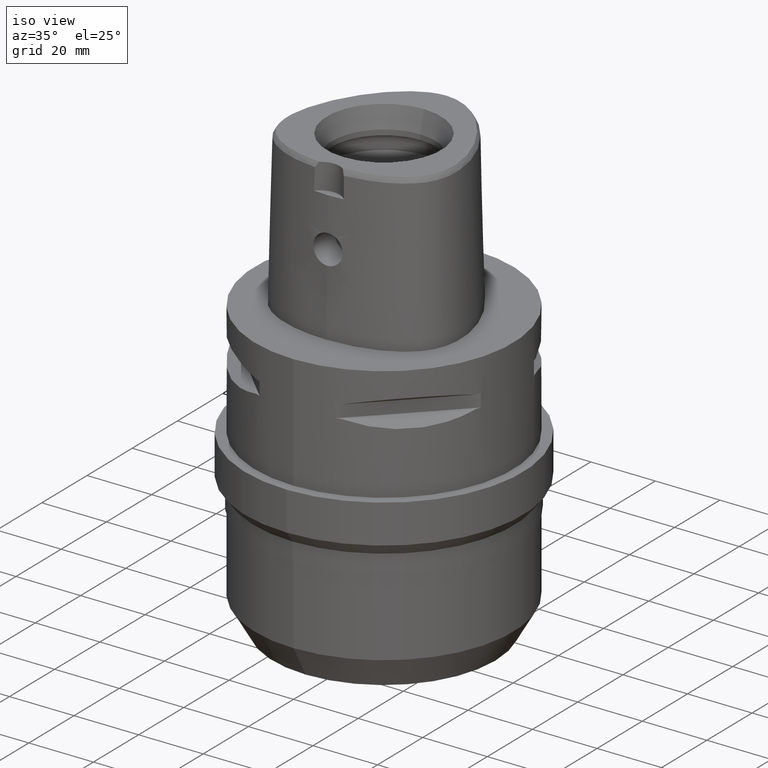
[diagram: clean part render]
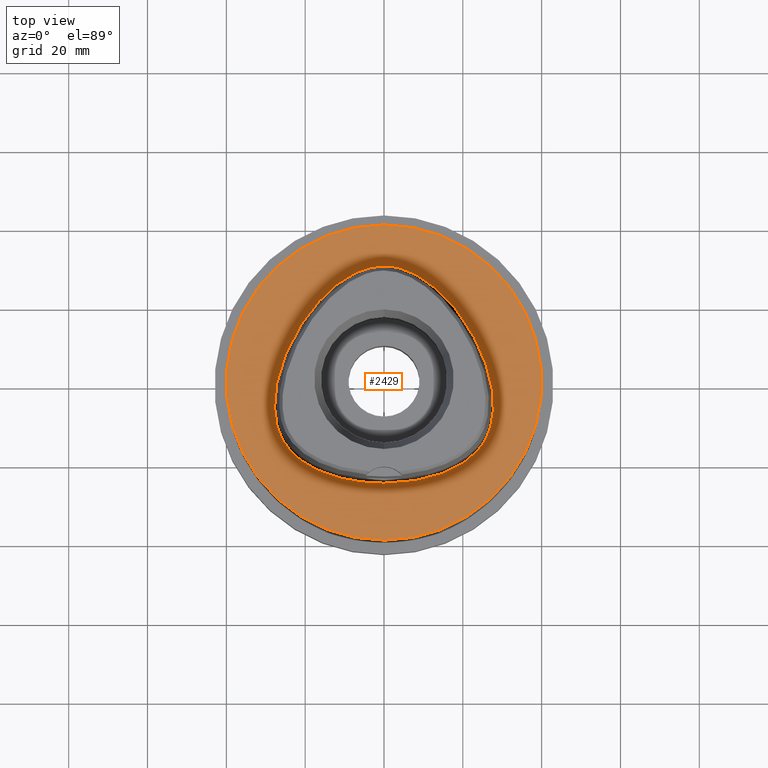
[diagram: tour spotlight — one face highlighted and labeled with its STEP entity id]
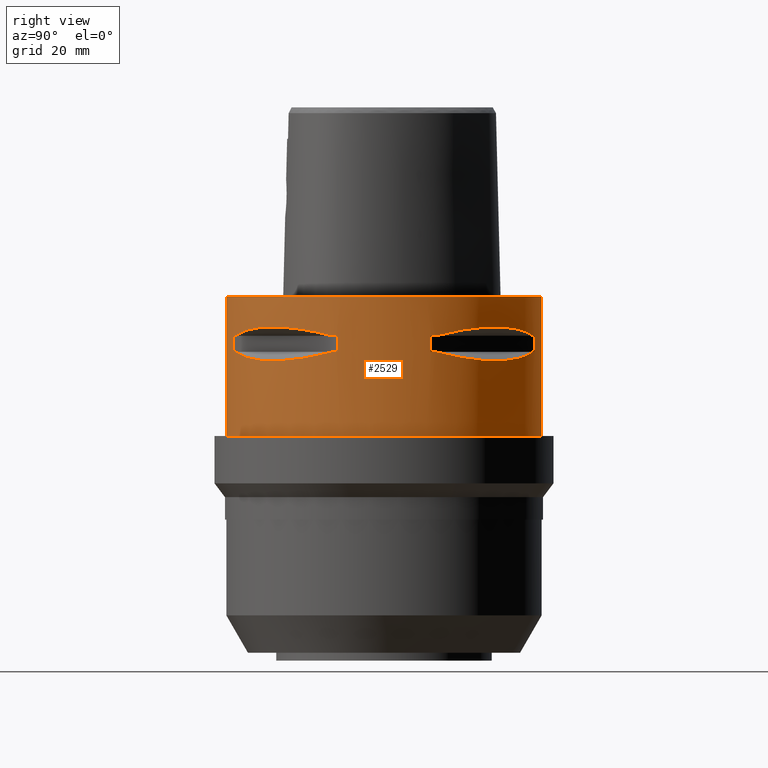
[diagram: tour spotlight — one face highlighted and labeled with its STEP entity id]
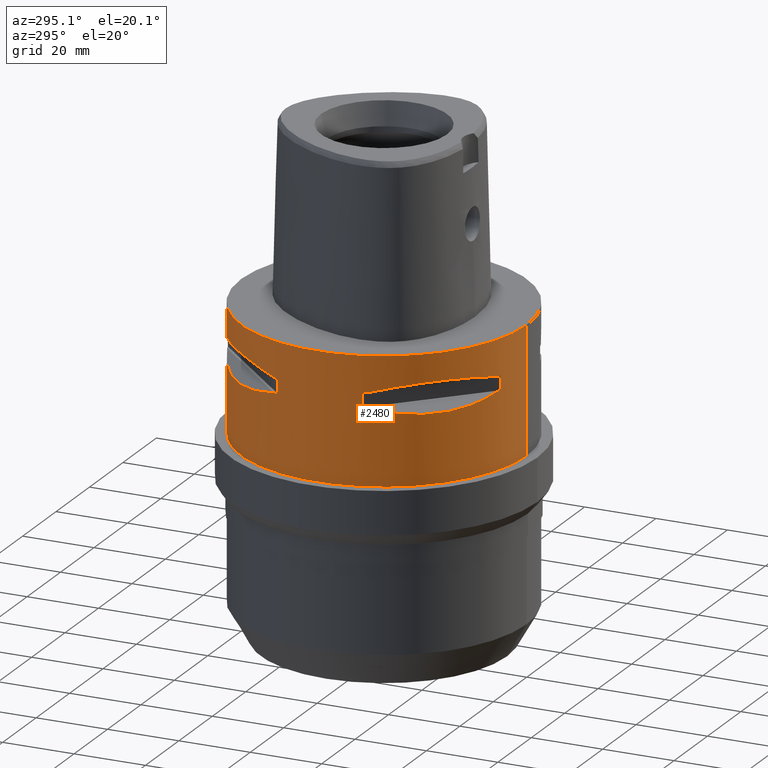
[diagram: tour spotlight — one face highlighted and labeled with its STEP entity id]
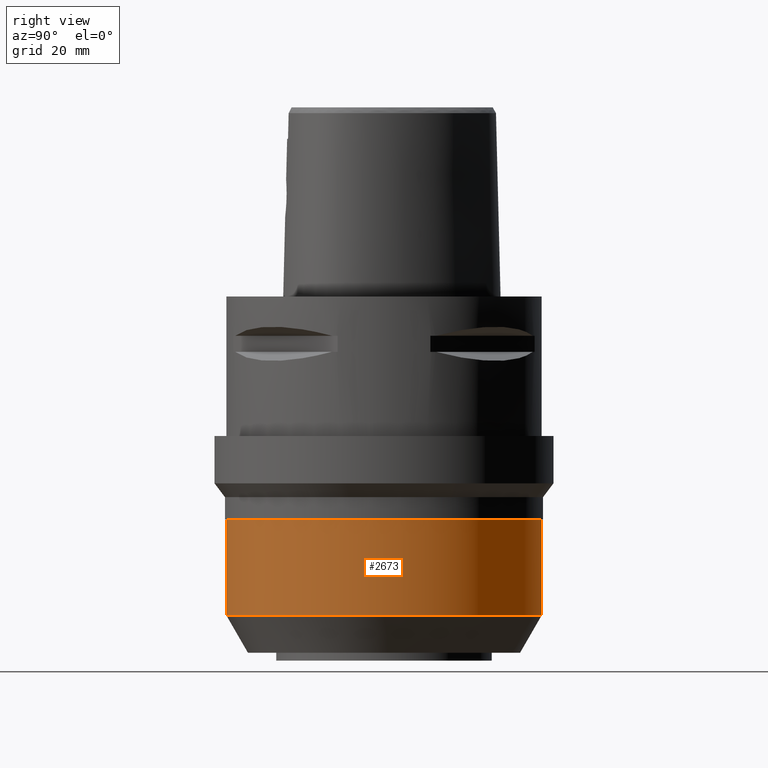
[diagram: tour spotlight — one face highlighted and labeled with its STEP entity id]
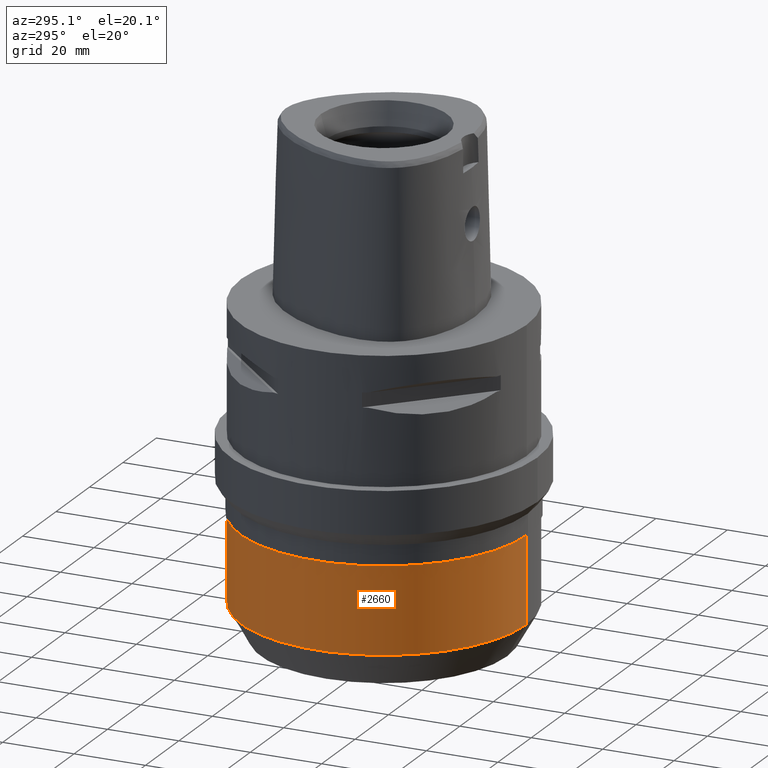
[diagram: tour spotlight — one face highlighted and labeled with its STEP entity id]
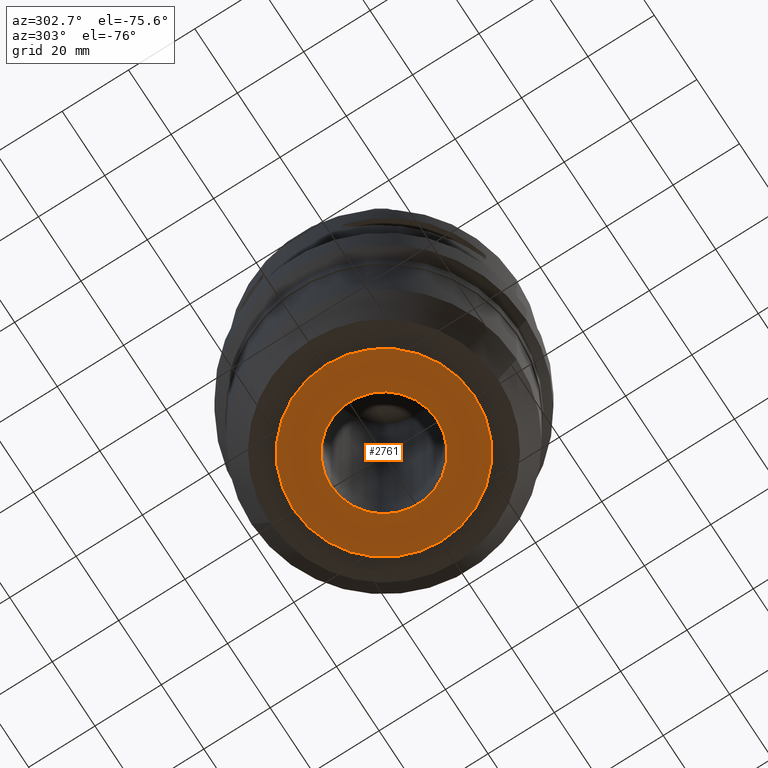
[diagram: tour spotlight — one face highlighted and labeled with its STEP entity id]
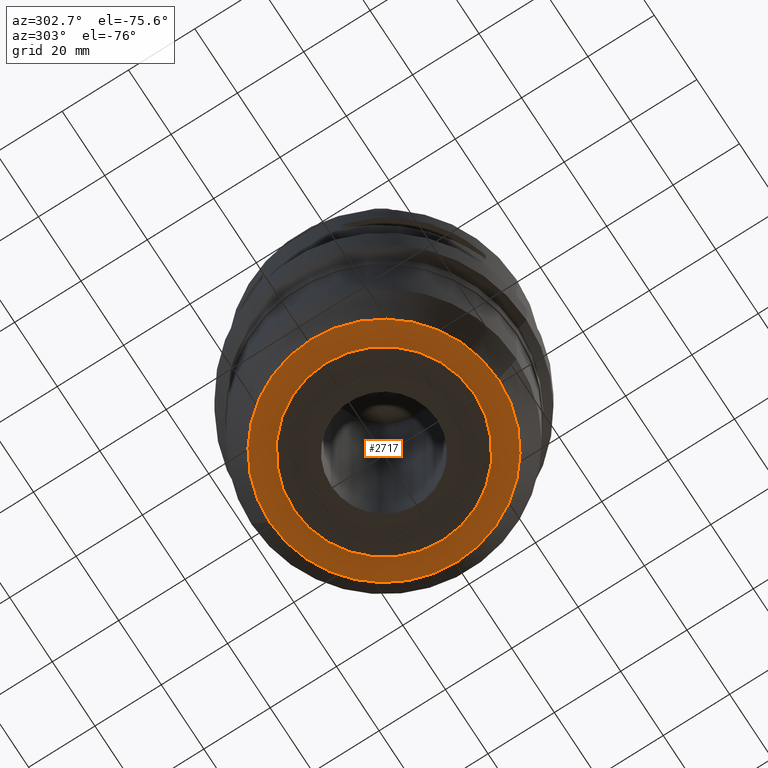
[diagram: tour spotlight — one face highlighted and labeled with its STEP entity id]
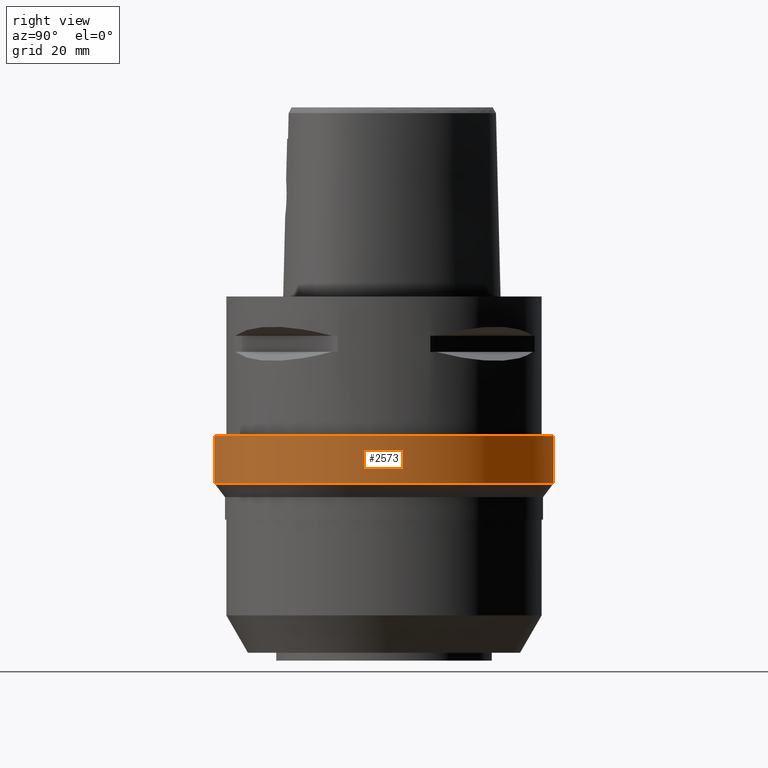
[diagram: tour spotlight — one face highlighted and labeled with its STEP entity id]
A machine part: a face-by-face anatomy tour. The part has 69 B-rep faces; the first image is the clean iso view, then the 8 largest visible faces are spotlighted one at a time (largest first), each with its STEP entity span.

Face 1 — top view, entity #2429. In plain terms, the highlighted planar face has unit normal (0, 0, -1).
Definition (entity closure, byte-faithful):
#292=CARTESIAN_POINT('',(0.E0,0.E0,0.E0));
#293=DIRECTION('',(0.E0,0.E0,-1.E0));
#294=DIRECTION('',(0.E0,-1.E0,0.E0));
#295=AXIS2_PLACEMENT_3D('',#292,#293,#294);
#300=CARTESIAN_POINT('',(0.E0,0.E0,0.E0));
#301=DIRECTION('',(0.E0,0.E0,-1.E0));
#302=DIRECTION('',(0.E0,1.E0,0.E0));
#303=AXIS2_PLACEMENT_3D('',#300,#301,#302);
#308=CARTESIAN_POINT('',(-1.704819286307E-11,-2.5575E1,1.118364660139E-13));
#309=CARTESIAN_POINT('',(1.192855654687E0,-2.5575E1,1.118364660139E-13));
#310=CARTESIAN_POINT('',(3.525474009142E0,-2.548902365288E1,
-5.190348450835E-14));
#311=CARTESIAN_POINT('',(6.913191500119E0,-2.511614812679E1,
1.390749675837E-14));
#312=CARTESIAN_POINT('',(1.004555650592E1,-2.453146325509E1,0.E0));
#313=CARTESIAN_POINT('',(1.287480431389E1,-2.377673871202E1,0.E0));
#314=CARTESIAN_POINT('',(1.537685864343E1,-2.289357187451E1,0.E0));
#315=CARTESIAN_POINT('',(1.755784012921E1,-2.191831839298E1,0.E0));
#316=CARTESIAN_POINT('',(1.943977073912E1,-2.087916476292E1,0.E0));
#317=CARTESIAN_POINT('',(2.105231534689E1,-1.979609368880E1,0.E0));
#318=CARTESIAN_POINT('',(2.242617933573E1,-1.868231820935E1,0.E0));
#319=CARTESIAN_POINT('',(2.359218890728E1,-1.754336768509E1,0.E0));
#320=CARTESIAN_POINT('',(2.457422268564E1,-1.638207117775E1,0.E0));
#321=CARTESIAN_POINT('',(2.539083324940E1,-1.520281756939E1,0.E0));
#322=CARTESIAN_POINT('',(2.607594664674E1,-1.396989071493E1,0.E0));
#323=CARTESIAN_POINT('',(2.665774432240E1,-1.262889422025E1,0.E0));
#324=CARTESIAN_POINT('',(2.713657693131E1,-1.115034439777E1,0.E0));
#325=CARTESIAN_POINT('',(2.749973550563E1,-9.518521507E0,0.E0));
#326=CARTESIAN_POINT('',(2.773143210919E1,-7.709925722843E0,0.E0));
#327=CARTESIAN_POINT('',(2.780878539476E1,-5.702858580120E0,0.E0));
#328=CARTESIAN_POINT('',(2.770312756552E1,-3.478249491200E0,0.E0));
#329=CARTESIAN_POINT('',(2.738074183948E1,-1.022878890598E0,0.E0));
#330=CARTESIAN_POINT('',(2.680591021336E1,1.662565602731E0,0.E0));
#331=CARTESIAN_POINT('',(2.594630766962E1,4.557115348051E0,0.E0));
#332=CARTESIAN_POINT('',(2.478176121823E1,7.610490465510E0,0.E0));
#333=CARTESIAN_POINT('',(2.331365745279E1,1.074148685814E1,0.E0));
#334=CARTESIAN_POINT('',(2.157347165724E1,1.384011179641E1,0.E0));
#335=CARTESIAN_POINT('',(1.964060043903E1,1.675996304863E1,0.E0));
#336=CARTESIAN_POINT('',(1.759822796826E1,1.939974571574E1,0.E0));
#337=CARTESIAN_POINT('',(1.551951354564E1,2.170589686970E1,0.E0));
#338=CARTESIAN_POINT('',(1.346458118819E1,2.365966150815E1,0.E0));
#339=CARTESIAN_POINT('',(1.147339877138E1,2.527228069645E1,0.E0));
#340=CARTESIAN_POINT('',(9.569291645170E0,2.657104012927E1,0.E0));
#341=CARTESIAN_POINT('',(7.761236493572E0,2.759097337069E1,0.E0));
#342=CARTESIAN_POINT('',(6.048963475842E0,2.836733969280E1,0.E0));
#343=CARTESIAN_POINT('',(4.426464392993E0,2.893213407126E1,0.E0));
#344=CARTESIAN_POINT('',(2.883294620587E0,2.931235794594E1,1.312054045603E-14));
#345=CARTESIAN_POINT('',(1.410670896354E0,2.952903181481E1,
-4.896652360467E-14));
#346=CARTESIAN_POINT('',(4.637439554641E-1,2.957499999999E1,
1.055081947735E-13));
#347=CARTESIAN_POINT('',(4.094835185930E-11,2.957499999999E1,
1.055081947735E-13));
#352=CARTESIAN_POINT('',(4.094835185930E-11,2.957499999999E1,
1.055081947735E-13));
#353=CARTESIAN_POINT('',(-4.664564684384E-1,2.957499999999E1,
1.055081947735E-13));
#354=CARTESIAN_POINT('',(-1.418271028566E0,2.952848507996E1,
-4.896652360467E-14));
#355=CARTESIAN_POINT('',(-2.896217051050E0,2.930995325337E1,
1.312054045603E-14));
#356=CARTESIAN_POINT('',(-4.443884931567E0,2.892708811583E1,0.E0));
#357=CARTESIAN_POINT('',(-6.069813882001E0,2.835898482873E1,0.E0));
#358=CARTESIAN_POINT('',(-7.780373194796E0,2.758111955665E1,0.E0));
#359=CARTESIAN_POINT('',(-9.585481608237E0,2.656078305260E1,0.E0));
#360=CARTESIAN_POINT('',(-1.148361208187E1,2.526433347887E1,0.E0));
#361=CARTESIAN_POINT('',(-1.346633178516E1,2.365774650746E1,0.E0));
#362=CARTESIAN_POINT('',(-1.551326053238E1,2.171184069412E1,0.E0));
#363=CARTESIAN_POINT('',(-1.758199557510E1,1.941857400264E1,0.E0));
#364=CARTESIAN_POINT('',(-1.961693493878E1,1.679246973417E1,0.E0));
#365=CARTESIAN_POINT('',(-2.154357946018E1,1.388796551507E1,0.E0));
#366=CARTESIAN_POINT('',(-2.327631850598E1,1.081304331557E1,0.E0));
#367=CARTESIAN_POINT('',(-2.474800267217E1,7.689226874884E0,0.E0));
#368=CARTESIAN_POINT('',(-2.591507505114E1,4.647666988424E0,0.E0));
#369=CARTESIAN_POINT('',(-2.678019667027E1,1.761498275329E0,0.E0));
#370=CARTESIAN_POINT('',(-2.736252648146E1,-9.199920726734E-1,0.E0));
#371=CARTESIAN_POINT('',(-2.769345335620E1,-3.374240948671E0,0.E0));
#372=CARTESIAN_POINT('',(-2.780796994262E1,-5.603010637275E0,0.E0));
#373=CARTESIAN_POINT('',(-2.773915802349E1,-7.615039053868E0,0.E0));
#374=CARTESIAN_POINT('',(-2.751385896507E1,-9.436890439889E0,0.E0));
#375=CARTESIAN_POINT('',(-2.715772832384E1,-1.107142889865E1,0.E0));
#376=CARTESIAN_POINT('',(-2.668453526956E1,-1.255805913812E1,0.E0));
#377=CARTESIAN_POINT('',(-2.610182852062E1,-1.391937325701E1,0.E0));
#378=CARTESIAN_POINT('',(-2.539957500954E1,-1.519188202084E1,0.E0));
#379=CARTESIAN_POINT('',(-2.455886506967E1,-1.640320524147E1,0.E0));
#380=CARTESIAN_POINT('',(-2.356927570199E1,-1.756804304800E1,0.E0));
#381=CARTESIAN_POINT('',(-2.239536366538E1,-1.870975851906E1,0.E0));
#382=CARTESIAN_POINT('',(-2.101862773116E1,-1.982083592174E1,0.E0));
#383=CARTESIAN_POINT('',(-1.940143759145E1,-2.090242833450E1,0.E0));
#384=CARTESIAN_POINT('',(-1.751815854250E1,-2.193790857256E1,0.E0));
#385=CARTESIAN_POINT('',(-1.533575286605E1,-2.290979051184E1,0.E0));
#386=CARTESIAN_POINT('',(-1.283637987130E1,-2.378832450704E1,0.E0));
#387=CARTESIAN_POINT('',(-1.001156390994E1,-2.453906053571E1,0.E0));
#388=CARTESIAN_POINT('',(-6.881039442222E0,-2.512047618744E1,
1.390749675837E-14));
#389=CARTESIAN_POINT('',(-3.517978097918E0,-2.548906313244E1,
-5.190348450835E-14));
#390=CARTESIAN_POINT('',(-1.190740944839E0,-2.5575E1,1.118364660139E-13));
#391=CARTESIAN_POINT('',(-1.704819286307E-11,-2.5575E1,1.118364660139E-13));
#1526=VERTEX_POINT('',#352);
#1527=VERTEX_POINT('',#391);
#1532=CARTESIAN_POINT('',(0.E0,-4.E1,0.E0));
#1533=CARTESIAN_POINT('',(0.E0,4.E1,0.E0));
#1534=VERTEX_POINT('',#1532);
#1535=VERTEX_POINT('',#1533);
#2413=CARTESIAN_POINT('',(0.E0,0.E0,0.E0));
#2414=DIRECTION('',(0.E0,0.E0,-1.E0));
#2415=DIRECTION('',(0.E0,-1.E0,0.E0));
#2416=AXIS2_PLACEMENT_3D('',#2413,#2414,#2415);
#2417=PLANE('',#2416);
#2419=ORIENTED_EDGE('',*,*,#2418,.T.);
#2421=ORIENTED_EDGE('',*,*,#2420,.T.);
#2422=EDGE_LOOP('',(#2419,#2421));
#2423=FACE_OUTER_BOUND('',#2422,.F.);
#2425=ORIENTED_EDGE('',*,*,#2424,.T.);
#2426=ORIENTED_EDGE('',*,*,#2396,.T.);
#2427=EDGE_LOOP('',(#2425,#2426));
#2428=FACE_BOUND('',#2427,.F.);
#296=CIRCLE('',#295,4.E1);
#304=CIRCLE('',#303,4.E1);
#348=B_SPLINE_CURVE_WITH_KNOTS('',3,(#308,#309,#310,#311,#312,#313,#314,#315,
#316,#317,#318,#319,#320,#321,#322,#323,#324,#325,#326,#327,#328,#329,#330,#331,
#332,#333,#334,#335,#336,#337,#338,#339,#340,#341,#342,#343,#344,#345,#346,
#347),.UNSPECIFIED.,.F.,.F.,(4,1,1,1,1,1,1,1,1,1,1,1,1,1,1,1,1,1,1,1,1,1,1,1,1,
1,1,1,1,1,1,1,1,1,1,1,1,4),(0.E0,2.702702702703E-2,5.405405405405E-2,
8.108108108108E-2,1.081081081081E-1,1.351351351351E-1,1.621621621622E-1,
1.891891891892E-1,2.162162162162E-1,2.432432432432E-1,2.702702702703E-1,
2.972972972973E-1,3.243243243243E-1,3.513513513514E-1,3.783783783784E-1,
4.054054054054E-1,4.324324324324E-1,4.594594594595E-1,4.864864864865E-1,
5.135135135135E-1,5.405405405405E-1,5.675675675676E-1,5.945945945946E-1,
6.216216216216E-1,6.486486486486E-1,6.756756756757E-1,7.027027027027E-1,
7.297297297297E-1,7.567567567568E-1,7.837837837838E-1,8.108108108108E-1,
8.378378378378E-1,8.648648648649E-1,8.918918918919E-1,9.189189189189E-1,
9.459459459459E-1,9.729729729730E-1,1.E0),.UNSPECIFIED.);
#392=B_SPLINE_CURVE_WITH_KNOTS('',3,(#352,#353,#354,#355,#356,#357,#358,#359,
#360,#361,#362,#363,#364,#365,#366,#367,#368,#369,#370,#371,#372,#373,#374,#375,
#376,#377,#378,#379,#380,#381,#382,#383,#384,#385,#386,#387,#388,#389,#390,
#391),.UNSPECIFIED.,.F.,.F.,(4,1,1,1,1,1,1,1,1,1,1,1,1,1,1,1,1,1,1,1,1,1,1,1,1,
1,1,1,1,1,1,1,1,1,1,1,1,4),(0.E0,2.702702702703E-2,5.405405405405E-2,
8.108108108108E-2,1.081081081081E-1,1.351351351351E-1,1.621621621622E-1,
1.891891891892E-1,2.162162162162E-1,2.432432432432E-1,2.702702702703E-1,
2.972972972973E-1,3.243243243243E-1,3.513513513514E-1,3.783783783784E-1,
4.054054054054E-1,4.324324324324E-1,4.594594594595E-1,4.864864864865E-1,
5.135135135135E-1,5.405405405405E-1,5.675675675676E-1,5.945945945946E-1,
6.216216216216E-1,6.486486486486E-1,6.756756756757E-1,7.027027027027E-1,
7.297297297297E-1,7.567567567568E-1,7.837837837838E-1,8.108108108108E-1,
8.378378378378E-1,8.648648648649E-1,8.918918918919E-1,9.189189189189E-1,
9.459459459459E-1,9.729729729730E-1,1.E0),.UNSPECIFIED.);
#2396=EDGE_CURVE('',#1526,#1527,#392,.T.);
#2418=EDGE_CURVE('',#1534,#1535,#296,.T.);
#2420=EDGE_CURVE('',#1535,#1534,#304,.T.);
#2424=EDGE_CURVE('',#1527,#1526,#348,.T.);
#2429=ADVANCED_FACE('',(#2423,#2428),#2417,.F.);

Face 2 — right view, entity #2529. In plain terms, the highlighted cylindrical surface (partial cylindrical patch) has radius 40 mm, axis along (0, 0, -1).
Definition (entity closure, byte-faithful):
#300=CARTESIAN_POINT('',(0.E0,0.E0,0.E0));
#301=DIRECTION('',(0.E0,0.E0,-1.E0));
#302=DIRECTION('',(0.E0,1.E0,0.E0));
#303=AXIS2_PLACEMENT_3D('',#300,#301,#302);
#396=DIRECTION('',(0.E0,0.E0,-1.E0));
#397=VECTOR('',#396,3.54E1);
#398=CARTESIAN_POINT('',(0.E0,-4.E1,0.E0));
#399=LINE('',#398,#397);
#453=DIRECTION('',(0.E0,0.E0,-1.E0));
#454=VECTOR('',#453,3.54E1);
#455=CARTESIAN_POINT('',(0.E0,4.E1,0.E0));
#456=LINE('',#455,#454);
#460=DIRECTION('',(0.E0,0.E0,-1.E0));
#461=VECTOR('',#460,4.1E0);
#462=CARTESIAN_POINT('',(1.176033600281E1,-3.823211342708E1,-9.95E0));
#463=LINE('',#462,#461);
#467=CARTESIAN_POINT('',(1.323717311056E1,-3.774622163927E1,-1.405E1));
#468=CARTESIAN_POINT('',(1.626143876435E1,-3.668564587161E1,-1.485167303901E1));
#469=CARTESIAN_POINT('',(2.171906657626E1,-3.397359084062E1,-1.597254843317E1));
#470=CARTESIAN_POINT('',(2.850324251697E1,-2.850324251697E1,-1.650891631180E1));
#471=CARTESIAN_POINT('',(3.397359084062E1,-2.171906657626E1,-1.597254843317E1));
#472=CARTESIAN_POINT('',(3.668564587161E1,-1.626143876435E1,-1.485167303901E1));
#473=CARTESIAN_POINT('',(3.774622163927E1,-1.323717311056E1,-1.405E1));
#478=DIRECTION('',(0.E0,0.E0,1.E0));
#479=VECTOR('',#478,4.1E0);
#480=CARTESIAN_POINT('',(3.823211342708E1,-1.176033600281E1,-1.405E1));
#481=LINE('',#480,#479);
#485=DIRECTION('',(0.E0,0.E0,-1.E0));
#486=VECTOR('',#485,4.1E0);
#487=CARTESIAN_POINT('',(3.823211342708E1,1.176033600281E1,-9.95E0));
#488=LINE('',#487,#486);
#492=CARTESIAN_POINT('',(3.774622163927E1,1.323717311056E1,-1.405E1));
#493=CARTESIAN_POINT('',(3.668564587161E1,1.626143876435E1,-1.485167303901E1));
#494=CARTESIAN_POINT('',(3.397359084062E1,2.171906657626E1,-1.597254843317E1));
#495=CARTESIAN_POINT('',(2.850324251697E1,2.850324251697E1,-1.650891631180E1));
#496=CARTESIAN_POINT('',(2.171906657626E1,3.397359084062E1,-1.597254843317E1));
#497=CARTESIAN_POINT('',(1.626143876435E1,3.668564587161E1,-1.485167303901E1));
#498=CARTESIAN_POINT('',(1.323717311056E1,3.774622163927E1,-1.405E1));
#503=DIRECTION('',(0.E0,0.E0,1.E0));
#504=VECTOR('',#503,4.1E0);
#505=CARTESIAN_POINT('',(1.176033600281E1,3.823211342708E1,-1.405E1));
#506=LINE('',#505,#504);
#526=CARTESIAN_POINT('',(0.E0,0.E0,-3.54E1));
#527=DIRECTION('',(0.E0,0.E0,1.E0));
#528=DIRECTION('',(0.E0,-1.E0,0.E0));
#529=AXIS2_PLACEMENT_3D('',#526,#527,#528);
#1226=CARTESIAN_POINT('',(1.323717311056E1,-3.774622163927E1,
-9.950000000002E0));
#1227=CARTESIAN_POINT('',(1.626143876435E1,-3.668564587161E1,
-9.148326960991E0));
#1228=CARTESIAN_POINT('',(2.171906657626E1,-3.397359084062E1,
-8.027451566833E0));
#1229=CARTESIAN_POINT('',(2.850324251697E1,-2.850324251697E1,
-7.491083688204E0));
#1230=CARTESIAN_POINT('',(3.397359084062E1,-2.171906657626E1,
-8.027451566833E0));
#1231=CARTESIAN_POINT('',(3.668564587161E1,-1.626143876435E1,
-9.148326960991E0));
#1232=CARTESIAN_POINT('',(3.774622163927E1,-1.323717311056E1,
-9.950000000002E0));
#1237=CARTESIAN_POINT('',(0.E0,0.E0,-9.95E0));
#1238=DIRECTION('',(0.E0,0.E0,1.E0));
#1239=DIRECTION('',(9.436555409818E-1,-3.309293277639E-1,0.E0));
#1240=AXIS2_PLACEMENT_3D('',#1237,#1238,#1239);
#1245=CARTESIAN_POINT('',(0.E0,0.E0,-9.95E0));
#1246=DIRECTION('',(0.E0,0.E0,1.E0));
#1247=DIRECTION('',(2.940084000703E-1,-9.558028356770E-1,0.E0));
#1248=AXIS2_PLACEMENT_3D('',#1245,#1246,#1247);
#1267=CARTESIAN_POINT('',(0.E0,0.E0,-1.405E1));
#1268=DIRECTION('',(0.E0,0.E0,-1.E0));
#1269=DIRECTION('',(9.558028356770E-1,-2.940084000703E-1,0.E0));
#1270=AXIS2_PLACEMENT_3D('',#1267,#1268,#1269);
#1275=CARTESIAN_POINT('',(0.E0,0.E0,-1.405E1));
#1276=DIRECTION('',(0.E0,0.E0,-1.E0));
#1277=DIRECTION('',(3.309293277639E-1,-9.436555409818E-1,0.E0));
#1278=AXIS2_PLACEMENT_3D('',#1275,#1276,#1277);
#1297=CARTESIAN_POINT('',(3.774622163927E1,1.323717311056E1,-9.950000000002E0));
#1298=CARTESIAN_POINT('',(3.668564587161E1,1.626143876435E1,-9.148326960991E0));
#1299=CARTESIAN_POINT('',(3.397359084062E1,2.171906657626E1,-8.027451566833E0));
#1300=CARTESIAN_POINT('',(2.850324251697E1,2.850324251697E1,-7.491083688204E0));
#1301=CARTESIAN_POINT('',(2.171906657626E1,3.397359084062E1,-8.027451566833E0));
#1302=CARTESIAN_POINT('',(1.626143876435E1,3.668564587161E1,-9.148326960991E0));
#1303=CARTESIAN_POINT('',(1.323717311056E1,3.774622163927E1,-9.950000000002E0));
#1308=CARTESIAN_POINT('',(0.E0,0.E0,-9.95E0));
#1309=DIRECTION('',(0.E0,0.E0,1.E0));
#1310=DIRECTION('',(3.309293277639E-1,9.436555409818E-1,0.E0));
#1311=AXIS2_PLACEMENT_3D('',#1308,#1309,#1310);
#1316=CARTESIAN_POINT('',(0.E0,0.E0,-9.95E0));
#1317=DIRECTION('',(0.E0,0.E0,1.E0));
#1318=DIRECTION('',(9.558028356770E-1,2.940084000703E-1,0.E0));
#1319=AXIS2_PLACEMENT_3D('',#1316,#1317,#1318);
#1338=CARTESIAN_POINT('',(0.E0,0.E0,-1.405E1));
#1339=DIRECTION('',(0.E0,0.E0,-1.E0));
#1340=DIRECTION('',(2.940084000703E-1,9.558028356770E-1,0.E0));
#1341=AXIS2_PLACEMENT_3D('',#1338,#1339,#1340);
#1346=CARTESIAN_POINT('',(0.E0,0.E0,-1.405E1));
#1347=DIRECTION('',(0.E0,0.E0,-1.E0));
#1348=DIRECTION('',(9.436555409818E-1,3.309293277639E-1,0.E0));
#1349=AXIS2_PLACEMENT_3D('',#1346,#1347,#1348);
#1532=CARTESIAN_POINT('',(0.E0,-4.E1,0.E0));
#1533=CARTESIAN_POINT('',(0.E0,4.E1,0.E0));
#1534=VERTEX_POINT('',#1532);
#1535=VERTEX_POINT('',#1533);
#1536=CARTESIAN_POINT('',(0.E0,4.E1,-3.54E1));
#1537=VERTEX_POINT('',#1536);
#1538=CARTESIAN_POINT('',(0.E0,-4.E1,-3.54E1));
#1539=VERTEX_POINT('',#1538);
#1566=VERTEX_POINT('',#1226);
#1567=VERTEX_POINT('',#1232);
#1568=CARTESIAN_POINT('',(1.176033600281E1,-3.823211342708E1,-9.95E0));
#1569=VERTEX_POINT('',#1568);
#1570=CARTESIAN_POINT('',(1.176033600281E1,-3.823211342708E1,-1.405E1));
#1571=VERTEX_POINT('',#1570);
#1572=CARTESIAN_POINT('',(1.323717311056E1,-3.774622163927E1,-1.405E1));
#1573=VERTEX_POINT('',#1572);
#1574=VERTEX_POINT('',#473);
#1575=CARTESIAN_POINT('',(3.823211342708E1,-1.176033600281E1,-1.405E1));
#1576=VERTEX_POINT('',#1575);
#1577=CARTESIAN_POINT('',(3.823211342708E1,-1.176033600281E1,-9.95E0));
#1578=VERTEX_POINT('',#1577);
#1579=VERTEX_POINT('',#1297);
#1580=VERTEX_POINT('',#1303);
#1581=CARTESIAN_POINT('',(3.823211342708E1,1.176033600281E1,-9.95E0));
#1582=VERTEX_POINT('',#1581);
#1583=CARTESIAN_POINT('',(3.823211342708E1,1.176033600281E1,-1.405E1));
#1584=VERTEX_POINT('',#1583);
#1585=CARTESIAN_POINT('',(3.774622163927E1,1.323717311056E1,-1.405E1));
#1586=VERTEX_POINT('',#1585);
#1587=VERTEX_POINT('',#498);
#1588=CARTESIAN_POINT('',(1.176033600281E1,3.823211342708E1,-1.405E1));
#1589=VERTEX_POINT('',#1588);
#1590=CARTESIAN_POINT('',(1.176033600281E1,3.823211342708E1,-9.95E0));
#1591=VERTEX_POINT('',#1590);
#2481=CARTESIAN_POINT('',(0.E0,0.E0,4.62E0));
#2482=DIRECTION('',(0.E0,0.E0,-1.E0));
#2483=DIRECTION('',(0.E0,-1.E0,0.E0));
#2484=AXIS2_PLACEMENT_3D('',#2481,#2482,#2483);
#2485=CYLINDRICAL_SURFACE('',#2484,4.E1);
#2486=ORIENTED_EDGE('',*,*,#2435,.T.);
#2488=ORIENTED_EDGE('',*,*,#2487,.F.);
#2489=ORIENTED_EDGE('',*,*,#2438,.F.);
#2490=ORIENTED_EDGE('',*,*,#2420,.F.);
#2491=EDGE_LOOP('',(#2486,#2488,#2489,#2490));
#2492=FACE_OUTER_BOUND('',#2491,.F.);
#2494=ORIENTED_EDGE('',*,*,#2493,.F.);
#2496=ORIENTED_EDGE('',*,*,#2495,.F.);
#2498=ORIENTED_EDGE('',*,*,#2497,.T.);
#2500=ORIENTED_EDGE('',*,*,#2499,.F.);
#2502=ORIENTED_EDGE('',*,*,#2501,.T.);
#2504=ORIENTED_EDGE('',*,*,#2503,.F.);
#2506=ORIENTED_EDGE('',*,*,#2505,.T.);
#2508=ORIENTED_EDGE('',*,*,#2507,.F.);
#2509=EDGE_LOOP('',(#2494,#2496,#2498,#2500,#2502,#2504,#2506,#2508));
#2510=FACE_BOUND('',#2509,.F.);
#2512=ORIENTED_EDGE('',*,*,#2511,.F.);
#2514=ORIENTED_EDGE('',*,*,#2513,.F.);
#2516=ORIENTED_EDGE('',*,*,#2515,.T.);
#2518=ORIENTED_EDGE('',*,*,#2517,.F.);
#2520=ORIENTED_EDGE('',*,*,#2519,.T.);
#2522=ORIENTED_EDGE('',*,*,#2521,.F.);
#2524=ORIENTED_EDGE('',*,*,#2523,.T.);
#2526=ORIENTED_EDGE('',*,*,#2525,.F.);
#2527=EDGE_LOOP('',(#2512,#2514,#2516,#2518,#2520,#2522,#2524,#2526));
#2528=FACE_BOUND('',#2527,.F.);
#304=CIRCLE('',#303,4.E1);
#474=B_SPLINE_CURVE_WITH_KNOTS('',3,(#467,#468,#469,#470,#471,#472,#473),
.UNSPECIFIED.,.F.,.F.,(4,1,1,1,4),(0.E0,2.5E-1,5.E-1,7.5E-1,1.E0),
.UNSPECIFIED.);
#499=B_SPLINE_CURVE_WITH_KNOTS('',3,(#492,#493,#494,#495,#496,#497,#498),
.UNSPECIFIED.,.F.,.F.,(4,1,1,1,4),(0.E0,2.5E-1,5.E-1,7.5E-1,1.E0),
.UNSPECIFIED.);
#530=CIRCLE('',#529,4.E1);
#1233=B_SPLINE_CURVE_WITH_KNOTS('',3,(#1226,#1227,#1228,#1229,#1230,#1231,
#1232),.UNSPECIFIED.,.F.,.F.,(4,1,1,1,4),(0.E0,2.5E-1,5.E-1,7.5E-1,1.E0),
.UNSPECIFIED.);
#1241=CIRCLE('',#1240,4.E1);
#1249=CIRCLE('',#1248,4.E1);
#1271=CIRCLE('',#1270,4.E1);
#1279=CIRCLE('',#1278,4.E1);
#1304=B_SPLINE_CURVE_WITH_KNOTS('',3,(#1297,#1298,#1299,#1300,#1301,#1302,
#1303),.UNSPECIFIED.,.F.,.F.,(4,1,1,1,4),(0.E0,2.5E-1,5.E-1,7.5E-1,1.E0),
.UNSPECIFIED.);
#1312=CIRCLE('',#1311,4.E1);
#1320=CIRCLE('',#1319,4.E1);
#1342=CIRCLE('',#1341,4.E1);
#1350=CIRCLE('',#1349,4.E1);
#2420=EDGE_CURVE('',#1535,#1534,#304,.T.);
#2435=EDGE_CURVE('',#1535,#1537,#456,.T.);
#2438=EDGE_CURVE('',#1534,#1539,#399,.T.);
#2487=EDGE_CURVE('',#1539,#1537,#530,.T.);
#2493=EDGE_CURVE('',#1566,#1567,#1233,.T.);
#2495=EDGE_CURVE('',#1569,#1566,#1249,.T.);
#2497=EDGE_CURVE('',#1569,#1571,#463,.T.);
#2499=EDGE_CURVE('',#1573,#1571,#1279,.T.);
#2501=EDGE_CURVE('',#1573,#1574,#474,.T.);
#2503=EDGE_CURVE('',#1576,#1574,#1271,.T.);
#2505=EDGE_CURVE('',#1576,#1578,#481,.T.);
#2507=EDGE_CURVE('',#1567,#1578,#1241,.T.);
#2511=EDGE_CURVE('',#1579,#1580,#1304,.T.);
#2513=EDGE_CURVE('',#1582,#1579,#1320,.T.);
#2515=EDGE_CURVE('',#1582,#1584,#488,.T.);
#2517=EDGE_CURVE('',#1586,#1584,#1350,.T.);
#2519=EDGE_CURVE('',#1586,#1587,#499,.T.);
#2521=EDGE_CURVE('',#1589,#1587,#1342,.T.);
#2523=EDGE_CURVE('',#1589,#1591,#506,.T.);
#2525=EDGE_CURVE('',#1580,#1591,#1312,.T.);
#2529=ADVANCED_FACE('',(#2492,#2510,#2528),#2485,.T.);

Face 3 — auxiliary view, entity #2480. In plain terms, the highlighted cylindrical surface (partial cylindrical patch) has radius 40 mm, axis along (0, 0, -1).
Definition (entity closure, byte-faithful):
#292=CARTESIAN_POINT('',(0.E0,0.E0,0.E0));
#293=DIRECTION('',(0.E0,0.E0,-1.E0));
#294=DIRECTION('',(0.E0,-1.E0,0.E0));
#295=AXIS2_PLACEMENT_3D('',#292,#293,#294);
#396=DIRECTION('',(0.E0,0.E0,-1.E0));
#397=VECTOR('',#396,3.54E1);
#398=CARTESIAN_POINT('',(0.E0,-4.E1,0.E0));
#399=LINE('',#398,#397);
#403=DIRECTION('',(0.E0,0.E0,-1.E0));
#404=VECTOR('',#403,4.1E0);
#405=CARTESIAN_POINT('',(-1.176033600281E1,3.823211342708E1,-9.95E0));
#406=LINE('',#405,#404);
#410=CARTESIAN_POINT('',(-1.323717311056E1,3.774622163927E1,-1.405E1));
#411=CARTESIAN_POINT('',(-1.626143876435E1,3.668564587161E1,-1.485167303901E1));
#412=CARTESIAN_POINT('',(-2.171906657626E1,3.397359084062E1,-1.597254843317E1));
#413=CARTESIAN_POINT('',(-2.850324251697E1,2.850324251697E1,-1.650891631180E1));
#414=CARTESIAN_POINT('',(-3.397359084062E1,2.171906657626E1,-1.597254843317E1));
#415=CARTESIAN_POINT('',(-3.668564587161E1,1.626143876435E1,-1.485167303901E1));
#416=CARTESIAN_POINT('',(-3.774622163927E1,1.323717311056E1,-1.405E1));
#421=DIRECTION('',(0.E0,0.E0,1.E0));
#422=VECTOR('',#421,4.1E0);
#423=CARTESIAN_POINT('',(-3.823211342708E1,1.176033600281E1,-1.405E1));
#424=LINE('',#423,#422);
#428=DIRECTION('',(0.E0,0.E0,-1.E0));
#429=VECTOR('',#428,4.1E0);
#430=CARTESIAN_POINT('',(-3.823211342708E1,-1.176033600281E1,-9.95E0));
#431=LINE('',#430,#429);
#435=CARTESIAN_POINT('',(-3.774622163927E1,-1.323717311056E1,-1.405E1));
#436=CARTESIAN_POINT('',(-3.668564587161E1,-1.626143876435E1,
-1.485167303901E1));
#437=CARTESIAN_POINT('',(-3.397359084062E1,-2.171906657626E1,
-1.597254843317E1));
#438=CARTESIAN_POINT('',(-2.850324251697E1,-2.850324251697E1,
-1.650891631180E1));
#439=CARTESIAN_POINT('',(-2.171906657626E1,-3.397359084062E1,
-1.597254843317E1));
#440=CARTESIAN_POINT('',(-1.626143876435E1,-3.668564587161E1,
-1.485167303901E1));
#441=CARTESIAN_POINT('',(-1.323717311056E1,-3.774622163927E1,-1.405E1));
#446=DIRECTION('',(0.E0,0.E0,1.E0));
#447=VECTOR('',#446,4.1E0);
#448=CARTESIAN_POINT('',(-1.176033600281E1,-3.823211342708E1,-1.405E1));
#449=LINE('',#448,#447);
#453=DIRECTION('',(0.E0,0.E0,-1.E0));
#454=VECTOR('',#453,3.54E1);
#455=CARTESIAN_POINT('',(0.E0,4.E1,0.E0));
#456=LINE('',#455,#454);
#534=CARTESIAN_POINT('',(0.E0,0.E0,-3.54E1));
#535=DIRECTION('',(0.E0,0.E0,1.E0));
#536=DIRECTION('',(0.E0,1.E0,0.E0));
#537=AXIS2_PLACEMENT_3D('',#534,#535,#536);
#1368=CARTESIAN_POINT('',(-1.323717311056E1,3.774622163927E1,
-9.950000000002E0));
#1369=CARTESIAN_POINT('',(-1.626143876435E1,3.668564587161E1,
-9.148326960991E0));
#1370=CARTESIAN_POINT('',(-2.171906657626E1,3.397359084062E1,
-8.027451566833E0));
#1371=CARTESIAN_POINT('',(-2.850324251697E1,2.850324251697E1,
-7.491083688204E0));
#1372=CARTESIAN_POINT('',(-3.397359084062E1,2.171906657626E1,
-8.027451566833E0));
#1373=CARTESIAN_POINT('',(-3.668564587161E1,1.626143876435E1,
-9.148326960991E0));
#1374=CARTESIAN_POINT('',(-3.774622163927E1,1.323717311056E1,
-9.950000000002E0));
#1379=CARTESIAN_POINT('',(0.E0,0.E0,-9.95E0));
#1380=DIRECTION('',(0.E0,0.E0,1.E0));
#1381=DIRECTION('',(-9.436555409818E-1,3.309293277639E-1,0.E0));
#1382=AXIS2_PLACEMENT_3D('',#1379,#1380,#1381);
#1387=CARTESIAN_POINT('',(0.E0,0.E0,-9.95E0));
#1388=DIRECTION('',(0.E0,0.E0,1.E0));
#1389=DIRECTION('',(-2.940084000703E-1,9.558028356770E-1,0.E0));
#1390=AXIS2_PLACEMENT_3D('',#1387,#1388,#1389);
#1409=CARTESIAN_POINT('',(0.E0,0.E0,-1.405E1));
#1410=DIRECTION('',(0.E0,0.E0,-1.E0));
#1411=DIRECTION('',(-9.558028356770E-1,2.940084000703E-1,0.E0));
#1412=AXIS2_PLACEMENT_3D('',#1409,#1410,#1411);
#1417=CARTESIAN_POINT('',(0.E0,0.E0,-1.405E1));
#1418=DIRECTION('',(0.E0,0.E0,-1.E0));
#1419=DIRECTION('',(-3.309293277639E-1,9.436555409818E-1,0.E0));
#1420=AXIS2_PLACEMENT_3D('',#1417,#1418,#1419);
#1439=CARTESIAN_POINT('',(-3.774622163927E1,-1.323717311056E1,
-9.950000000002E0));
#1440=CARTESIAN_POINT('',(-3.668564587161E1,-1.626143876435E1,
-9.148326960991E0));
#1441=CARTESIAN_POINT('',(-3.397359084062E1,-2.171906657626E1,
-8.027451566833E0));
#1442=CARTESIAN_POINT('',(-2.850324251697E1,-2.850324251697E1,
-7.491083688204E0));
#1443=CARTESIAN_POINT('',(-2.171906657626E1,-3.397359084062E1,
-8.027451566833E0));
#1444=CARTESIAN_POINT('',(-1.626143876435E1,-3.668564587161E1,
-9.148326960991E0));
#1445=CARTESIAN_POINT('',(-1.323717311056E1,-3.774622163927E1,
-9.950000000002E0));
#1450=CARTESIAN_POINT('',(0.E0,0.E0,-9.95E0));
#1451=DIRECTION('',(0.E0,0.E0,1.E0));
#1452=DIRECTION('',(-3.309293277639E-1,-9.436555409818E-1,0.E0));
#1453=AXIS2_PLACEMENT_3D('',#1450,#1451,#1452);
#1458=CARTESIAN_POINT('',(0.E0,0.E0,-9.95E0));
#1459=DIRECTION('',(0.E0,0.E0,1.E0));
#1460=DIRECTION('',(-9.558028356770E-1,-2.940084000703E-1,0.E0));
#1461=AXIS2_PLACEMENT_3D('',#1458,#1459,#1460);
#1480=CARTESIAN_POINT('',(0.E0,0.E0,-1.405E1));
#1481=DIRECTION('',(0.E0,0.E0,-1.E0));
#1482=DIRECTION('',(-2.940084000703E-1,-9.558028356770E-1,0.E0));
#1483=AXIS2_PLACEMENT_3D('',#1480,#1481,#1482);
#1488=CARTESIAN_POINT('',(0.E0,0.E0,-1.405E1));
#1489=DIRECTION('',(0.E0,0.E0,-1.E0));
#1490=DIRECTION('',(-9.436555409818E-1,-3.309293277639E-1,0.E0));
#1491=AXIS2_PLACEMENT_3D('',#1488,#1489,#1490);
#1532=CARTESIAN_POINT('',(0.E0,-4.E1,0.E0));
#1533=CARTESIAN_POINT('',(0.E0,4.E1,0.E0));
#1534=VERTEX_POINT('',#1532);
#1535=VERTEX_POINT('',#1533);
#1536=CARTESIAN_POINT('',(0.E0,4.E1,-3.54E1));
#1537=VERTEX_POINT('',#1536);
#1538=CARTESIAN_POINT('',(0.E0,-4.E1,-3.54E1));
#1539=VERTEX_POINT('',#1538);
#1540=VERTEX_POINT('',#1368);
#1541=VERTEX_POINT('',#1374);
#1542=CARTESIAN_POINT('',(-1.176033600281E1,3.823211342708E1,-9.95E0));
#1543=VERTEX_POINT('',#1542);
#1544=CARTESIAN_POINT('',(-1.176033600281E1,3.823211342708E1,-1.405E1));
#1545=VERTEX_POINT('',#1544);
#1546=CARTESIAN_POINT('',(-1.323717311056E1,3.774622163927E1,-1.405E1));
#1547=VERTEX_POINT('',#1546);
#1548=VERTEX_POINT('',#416);
#1549=CARTESIAN_POINT('',(-3.823211342708E1,1.176033600281E1,-1.405E1));
#1550=VERTEX_POINT('',#1549);
#1551=CARTESIAN_POINT('',(-3.823211342708E1,1.176033600281E1,-9.95E0));
#1552=VERTEX_POINT('',#1551);
#1553=VERTEX_POINT('',#1439);
#1554=VERTEX_POINT('',#1445);
#1555=CARTESIAN_POINT('',(-3.823211342708E1,-1.176033600281E1,-9.95E0));
#1556=VERTEX_POINT('',#1555);
#1557=CARTESIAN_POINT('',(-3.823211342708E1,-1.176033600281E1,-1.405E1));
#1558=VERTEX_POINT('',#1557);
#1559=CARTESIAN_POINT('',(-3.774622163927E1,-1.323717311056E1,-1.405E1));
#1560=VERTEX_POINT('',#1559);
#1561=VERTEX_POINT('',#441);
#1562=CARTESIAN_POINT('',(-1.176033600281E1,-3.823211342708E1,-1.405E1));
#1563=VERTEX_POINT('',#1562);
#1564=CARTESIAN_POINT('',(-1.176033600281E1,-3.823211342708E1,-9.95E0));
#1565=VERTEX_POINT('',#1564);
#2430=CARTESIAN_POINT('',(0.E0,0.E0,4.62E0));
#2431=DIRECTION('',(0.E0,0.E0,-1.E0));
#2432=DIRECTION('',(0.E0,-1.E0,0.E0));
#2433=AXIS2_PLACEMENT_3D('',#2430,#2431,#2432);
#2434=CYLINDRICAL_SURFACE('',#2433,4.E1);
#2436=ORIENTED_EDGE('',*,*,#2435,.F.);
#2437=ORIENTED_EDGE('',*,*,#2418,.F.);
#2439=ORIENTED_EDGE('',*,*,#2438,.T.);
#2441=ORIENTED_EDGE('',*,*,#2440,.F.);
#2442=EDGE_LOOP('',(#2436,#2437,#2439,#2441));
#2443=FACE_OUTER_BOUND('',#2442,.F.);
#2445=ORIENTED_EDGE('',*,*,#2444,.F.);
#2447=ORIENTED_EDGE('',*,*,#2446,.F.);
#2449=ORIENTED_EDGE('',*,*,#2448,.T.);
#2451=ORIENTED_EDGE('',*,*,#2450,.F.);
#2453=ORIENTED_EDGE('',*,*,#2452,.T.);
#2455=ORIENTED_EDGE('',*,*,#2454,.F.);
#2457=ORIENTED_EDGE('',*,*,#2456,.T.);
#2459=ORIENTED_EDGE('',*,*,#2458,.F.);
#2460=EDGE_LOOP('',(#2445,#2447,#2449,#2451,#2453,#2455,#2457,#2459));
#2461=FACE_BOUND('',#2460,.F.);
#2463=ORIENTED_EDGE('',*,*,#2462,.F.);
#2465=ORIENTED_EDGE('',*,*,#2464,.F.);
#2467=ORIENTED_EDGE('',*,*,#2466,.T.);
#2469=ORIENTED_EDGE('',*,*,#2468,.F.);
#2471=ORIENTED_EDGE('',*,*,#2470,.T.);
#2473=ORIENTED_EDGE('',*,*,#2472,.F.);
#2475=ORIENTED_EDGE('',*,*,#2474,.T.);
#2477=ORIENTED_EDGE('',*,*,#2476,.F.);
#2478=EDGE_LOOP('',(#2463,#2465,#2467,#2469,#2471,#2473,#2475,#2477));
#2479=FACE_BOUND('',#2478,.F.);
#296=CIRCLE('',#295,4.E1);
#417=B_SPLINE_CURVE_WITH_KNOTS('',3,(#410,#411,#412,#413,#414,#415,#416),
.UNSPECIFIED.,.F.,.F.,(4,1,1,1,4),(0.E0,2.5E-1,5.E-1,7.5E-1,1.E0),
.UNSPECIFIED.);
#442=B_SPLINE_CURVE_WITH_KNOTS('',3,(#435,#436,#437,#438,#439,#440,#441),
.UNSPECIFIED.,.F.,.F.,(4,1,1,1,4),(0.E0,2.5E-1,5.E-1,7.5E-1,1.E0),
.UNSPECIFIED.);
#538=CIRCLE('',#537,4.E1);
#1375=B_SPLINE_CURVE_WITH_KNOTS('',3,(#1368,#1369,#1370,#1371,#1372,#1373,
#1374),.UNSPECIFIED.,.F.,.F.,(4,1,1,1,4),(0.E0,2.5E-1,5.E-1,7.5E-1,1.E0),
.UNSPECIFIED.);
#1383=CIRCLE('',#1382,4.E1);
#1391=CIRCLE('',#1390,4.E1);
#1413=CIRCLE('',#1412,4.E1);
#1421=CIRCLE('',#1420,4.E1);
#1446=B_SPLINE_CURVE_WITH_KNOTS('',3,(#1439,#1440,#1441,#1442,#1443,#1444,
#1445),.UNSPECIFIED.,.F.,.F.,(4,1,1,1,4),(0.E0,2.5E-1,5.E-1,7.5E-1,1.E0),
.UNSPECIFIED.);
#1454=CIRCLE('',#1453,4.E1);
#1462=CIRCLE('',#1461,4.E1);
#1484=CIRCLE('',#1483,4.E1);
#1492=CIRCLE('',#1491,4.E1);
#2418=EDGE_CURVE('',#1534,#1535,#296,.T.);
#2435=EDGE_CURVE('',#1535,#1537,#456,.T.);
#2438=EDGE_CURVE('',#1534,#1539,#399,.T.);
#2440=EDGE_CURVE('',#1537,#1539,#538,.T.);
#2444=EDGE_CURVE('',#1540,#1541,#1375,.T.);
#2446=EDGE_CURVE('',#1543,#1540,#1391,.T.);
#2448=EDGE_CURVE('',#1543,#1545,#406,.T.);
#2450=EDGE_CURVE('',#1547,#1545,#1421,.T.);
#2452=EDGE_CURVE('',#1547,#1548,#417,.T.);
#2454=EDGE_CURVE('',#1550,#1548,#1413,.T.);
#2456=EDGE_CURVE('',#1550,#1552,#424,.T.);
#2458=EDGE_CURVE('',#1541,#1552,#1383,.T.);
#2462=EDGE_CURVE('',#1553,#1554,#1446,.T.);
#2464=EDGE_CURVE('',#1556,#1553,#1462,.T.);
#2466=EDGE_CURVE('',#1556,#1558,#431,.T.);
#2468=EDGE_CURVE('',#1560,#1558,#1492,.T.);
#2470=EDGE_CURVE('',#1560,#1561,#442,.T.);
#2472=EDGE_CURVE('',#1563,#1561,#1484,.T.);
#2474=EDGE_CURVE('',#1563,#1565,#449,.T.);
#2476=EDGE_CURVE('',#1554,#1565,#1454,.T.);
#2480=ADVANCED_FACE('',(#2443,#2461,#2479),#2434,.T.);

Face 4 — right view, entity #2673. In plain terms, the highlighted cylindrical surface (partial cylindrical patch) has radius 40 mm, axis along (0, 0, -1).
Definition (entity closure, byte-faithful):
#640=CARTESIAN_POINT('',(0.E0,0.E0,-5.66E1));
#641=DIRECTION('',(0.E0,0.E0,-1.E0));
#642=DIRECTION('',(0.E0,1.E0,0.E0));
#643=AXIS2_PLACEMENT_3D('',#640,#641,#642);
#648=DIRECTION('',(0.E0,-1.111136788431E-14,-1.E0));
#649=VECTOR('',#648,2.43E1);
#650=CARTESIAN_POINT('',(0.E0,-4.E1,-5.66E1));
#651=LINE('',#650,#649);
#655=DIRECTION('',(0.E0,1.052655904830E-14,-1.E0));
#656=VECTOR('',#655,2.43E1);
#657=CARTESIAN_POINT('',(0.E0,4.E1,-5.66E1));
#658=LINE('',#657,#656);
#669=CARTESIAN_POINT('',(0.E0,-1.048909983470E-14,-8.09E1));
#670=DIRECTION('',(0.E0,0.E0,1.E0));
#671=DIRECTION('',(0.E0,-1.E0,0.E0));
#672=AXIS2_PLACEMENT_3D('',#669,#670,#671);
#1608=CARTESIAN_POINT('',(0.E0,-4.E1,-5.66E1));
#1609=CARTESIAN_POINT('',(0.E0,4.E1,-5.66E1));
#1610=VERTEX_POINT('',#1608);
#1611=VERTEX_POINT('',#1609);
#1612=CARTESIAN_POINT('',(0.E0,4.E1,-8.09E1));
#1613=VERTEX_POINT('',#1612);
#1614=CARTESIAN_POINT('',(0.E0,-4.E1,-8.09E1));
#1615=VERTEX_POINT('',#1614);
#2661=CARTESIAN_POINT('',(0.E0,0.E0,4.62E0));
#2662=DIRECTION('',(0.E0,0.E0,-1.E0));
#2663=DIRECTION('',(0.E0,-1.E0,0.E0));
#2664=AXIS2_PLACEMENT_3D('',#2661,#2662,#2663);
#2665=CYLINDRICAL_SURFACE('',#2664,4.E1);
#2666=ORIENTED_EDGE('',*,*,#2651,.T.);
#2668=ORIENTED_EDGE('',*,*,#2667,.F.);
#2669=ORIENTED_EDGE('',*,*,#2654,.F.);
#2670=ORIENTED_EDGE('',*,*,#2641,.F.);
#2671=EDGE_LOOP('',(#2666,#2668,#2669,#2670));
#2672=FACE_OUTER_BOUND('',#2671,.F.);
#644=CIRCLE('',#643,4.E1);
#673=CIRCLE('',#672,4.E1);
#2641=EDGE_CURVE('',#1611,#1610,#644,.T.);
#2651=EDGE_CURVE('',#1611,#1613,#658,.T.);
#2654=EDGE_CURVE('',#1610,#1615,#651,.T.);
#2667=EDGE_CURVE('',#1615,#1613,#673,.T.);
#2673=ADVANCED_FACE('',(#2672),#2665,.T.);

Face 5 — auxiliary view, entity #2660. In plain terms, the highlighted cylindrical surface (partial cylindrical patch) has radius 40 mm, axis along (0, 0, -1).
Definition (entity closure, byte-faithful):
#632=CARTESIAN_POINT('',(0.E0,0.E0,-5.66E1));
#633=DIRECTION('',(0.E0,0.E0,-1.E0));
#634=DIRECTION('',(0.E0,-1.E0,0.E0));
#635=AXIS2_PLACEMENT_3D('',#632,#633,#634);
#648=DIRECTION('',(0.E0,-1.111136788431E-14,-1.E0));
#649=VECTOR('',#648,2.43E1);
#650=CARTESIAN_POINT('',(0.E0,-4.E1,-5.66E1));
#651=LINE('',#650,#649);
#655=DIRECTION('',(0.E0,1.052655904830E-14,-1.E0));
#656=VECTOR('',#655,2.43E1);
#657=CARTESIAN_POINT('',(0.E0,4.E1,-5.66E1));
#658=LINE('',#657,#656);
#677=CARTESIAN_POINT('',(0.E0,-1.048909983470E-14,-8.09E1));
#678=DIRECTION('',(0.E0,0.E0,1.E0));
#679=DIRECTION('',(0.E0,1.E0,0.E0));
#680=AXIS2_PLACEMENT_3D('',#677,#678,#679);
#1608=CARTESIAN_POINT('',(0.E0,-4.E1,-5.66E1));
#1609=CARTESIAN_POINT('',(0.E0,4.E1,-5.66E1));
#1610=VERTEX_POINT('',#1608);
#1611=VERTEX_POINT('',#1609);
#1612=CARTESIAN_POINT('',(0.E0,4.E1,-8.09E1));
#1613=VERTEX_POINT('',#1612);
#1614=CARTESIAN_POINT('',(0.E0,-4.E1,-8.09E1));
#1615=VERTEX_POINT('',#1614);
#2646=CARTESIAN_POINT('',(0.E0,0.E0,4.62E0));
#2647=DIRECTION('',(0.E0,0.E0,-1.E0));
#2648=DIRECTION('',(0.E0,-1.E0,0.E0));
#2649=AXIS2_PLACEMENT_3D('',#2646,#2647,#2648);
#2650=CYLINDRICAL_SURFACE('',#2649,4.E1);
#2652=ORIENTED_EDGE('',*,*,#2651,.F.);
#2653=ORIENTED_EDGE('',*,*,#2639,.F.);
#2655=ORIENTED_EDGE('',*,*,#2654,.T.);
#2657=ORIENTED_EDGE('',*,*,#2656,.F.);
#2658=EDGE_LOOP('',(#2652,#2653,#2655,#2657));
#2659=FACE_OUTER_BOUND('',#2658,.F.);
#636=CIRCLE('',#635,4.E1);
#681=CIRCLE('',#680,4.E1);
#2639=EDGE_CURVE('',#1610,#1611,#636,.T.);
#2651=EDGE_CURVE('',#1611,#1613,#658,.T.);
#2654=EDGE_CURVE('',#1610,#1615,#651,.T.);
#2656=EDGE_CURVE('',#1613,#1615,#681,.T.);
#2660=ADVANCED_FACE('',(#2659),#2650,.T.);

Face 6 — auxiliary view, entity #2761. In plain terms, the highlighted planar face has unit normal (0, 0, -1).
Definition (entity closure, byte-faithful):
#738=CARTESIAN_POINT('',(0.E0,0.E0,-9.24E1));
#739=DIRECTION('',(0.E0,0.E0,1.E0));
#740=DIRECTION('',(0.E0,-1.E0,0.E0));
#741=AXIS2_PLACEMENT_3D('',#738,#739,#740);
#746=CARTESIAN_POINT('',(0.E0,0.E0,-9.24E1));
#747=DIRECTION('',(0.E0,0.E0,1.E0));
#748=DIRECTION('',(0.E0,1.E0,0.E0));
#749=AXIS2_PLACEMENT_3D('',#746,#747,#748);
#754=CARTESIAN_POINT('',(0.E0,0.E0,-9.24E1));
#755=DIRECTION('',(0.E0,0.E0,-1.E0));
#756=DIRECTION('',(0.E0,-1.E0,0.E0));
#757=AXIS2_PLACEMENT_3D('',#754,#755,#756);
#762=CARTESIAN_POINT('',(0.E0,0.E0,-9.24E1));
#763=DIRECTION('',(0.E0,0.E0,-1.E0));
#764=DIRECTION('',(0.E0,1.E0,0.E0));
#765=AXIS2_PLACEMENT_3D('',#762,#763,#764);
#1624=CARTESIAN_POINT('',(0.E0,2.735E1,-9.24E1));
#1625=VERTEX_POINT('',#1624);
#1626=CARTESIAN_POINT('',(0.E0,-2.735E1,-9.24E1));
#1627=VERTEX_POINT('',#1626);
#1628=CARTESIAN_POINT('',(0.E0,-1.6E1,-9.24E1));
#1629=CARTESIAN_POINT('',(0.E0,1.6E1,-9.24E1));
#1630=VERTEX_POINT('',#1628);
#1631=VERTEX_POINT('',#1629);
#2746=CARTESIAN_POINT('',(0.E0,-1.131573642412E-14,-9.24E1));
#2747=DIRECTION('',(0.E0,0.E0,-1.E0));
#2748=DIRECTION('',(0.E0,-1.E0,0.E0));
#2749=AXIS2_PLACEMENT_3D('',#2746,#2747,#2748);
#2750=PLANE('',#2749);
#2751=ORIENTED_EDGE('',*,*,#2739,.T.);
#2752=ORIENTED_EDGE('',*,*,#2728,.T.);
#2753=EDGE_LOOP('',(#2751,#2752));
#2754=FACE_OUTER_BOUND('',#2753,.F.);
#2756=ORIENTED_EDGE('',*,*,#2755,.T.);
#2758=ORIENTED_EDGE('',*,*,#2757,.T.);
#2759=EDGE_LOOP('',(#2756,#2758));
#2760=FACE_BOUND('',#2759,.F.);
#742=CIRCLE('',#741,2.735E1);
#750=CIRCLE('',#749,2.735E1);
#758=CIRCLE('',#757,1.6E1);
#766=CIRCLE('',#765,1.6E1);
#2728=EDGE_CURVE('',#1625,#1627,#750,.T.);
#2739=EDGE_CURVE('',#1627,#1625,#742,.T.);
#2755=EDGE_CURVE('',#1630,#1631,#758,.T.);
#2757=EDGE_CURVE('',#1631,#1630,#766,.T.);
#2761=ADVANCED_FACE('',(#2754,#2760),#2750,.T.);

Face 7 — auxiliary view, entity #2717. In plain terms, the highlighted planar face has unit normal (0, 0, -1).
Definition (entity closure, byte-faithful):
#692=CARTESIAN_POINT('',(0.E0,-1.048909983470E-14,-9.04E1));
#693=DIRECTION('',(0.E0,0.E0,1.E0));
#694=DIRECTION('',(0.E0,-1.E0,0.E0));
#695=AXIS2_PLACEMENT_3D('',#692,#693,#694);
#700=CARTESIAN_POINT('',(0.E0,-1.048909983470E-14,-9.04E1));
#701=DIRECTION('',(0.E0,0.E0,1.E0));
#702=DIRECTION('',(0.E0,1.E0,0.E0));
#703=AXIS2_PLACEMENT_3D('',#700,#701,#702);
#708=CARTESIAN_POINT('',(0.E0,0.E0,-9.04E1));
#709=DIRECTION('',(0.E0,0.E0,-1.E0));
#710=DIRECTION('',(0.E0,-1.E0,0.E0));
#711=AXIS2_PLACEMENT_3D('',#708,#709,#710);
#716=CARTESIAN_POINT('',(0.E0,0.E0,-9.04E1));
#717=DIRECTION('',(0.E0,0.E0,-1.E0));
#718=DIRECTION('',(0.E0,1.E0,0.E0));
#719=AXIS2_PLACEMENT_3D('',#716,#717,#718);
#1616=CARTESIAN_POINT('',(0.E0,3.451517244270E1,-9.04E1));
#1617=VERTEX_POINT('',#1616);
#1618=CARTESIAN_POINT('',(0.E0,-3.451517244270E1,-9.04E1));
#1619=VERTEX_POINT('',#1618);
#1620=CARTESIAN_POINT('',(0.E0,-2.735E1,-9.04E1));
#1621=CARTESIAN_POINT('',(0.E0,2.735E1,-9.04E1));
#1622=VERTEX_POINT('',#1620);
#1623=VERTEX_POINT('',#1621);
#2702=CARTESIAN_POINT('',(0.E0,-1.107080706429E-14,-9.04E1));
#2703=DIRECTION('',(0.E0,0.E0,-1.E0));
#2704=DIRECTION('',(0.E0,-1.E0,0.E0));
#2705=AXIS2_PLACEMENT_3D('',#2702,#2703,#2704);
#2706=PLANE('',#2705);
#2707=ORIENTED_EDGE('',*,*,#2681,.T.);
#2708=ORIENTED_EDGE('',*,*,#2697,.T.);
#2709=EDGE_LOOP('',(#2707,#2708));
#2710=FACE_OUTER_BOUND('',#2709,.F.);
#2712=ORIENTED_EDGE('',*,*,#2711,.T.);
#2714=ORIENTED_EDGE('',*,*,#2713,.T.);
#2715=EDGE_LOOP('',(#2712,#2714));
#2716=FACE_BOUND('',#2715,.F.);
#696=CIRCLE('',#695,3.451517244270E1);
#704=CIRCLE('',#703,3.451517244270E1);
#712=CIRCLE('',#711,2.735E1);
#720=CIRCLE('',#719,2.735E1);
#2681=EDGE_CURVE('',#1619,#1617,#696,.T.);
#2697=EDGE_CURVE('',#1617,#1619,#704,.T.);
#2711=EDGE_CURVE('',#1622,#1623,#712,.T.);
#2713=EDGE_CURVE('',#1623,#1622,#720,.T.);
#2717=ADVANCED_FACE('',(#2710,#2716),#2706,.T.);

Face 8 — right view, entity #2573. In plain terms, the highlighted cylindrical surface (partial cylindrical patch) has radius 43 mm, axis along (0, 0, -1).
Definition (entity closure, byte-faithful):
#518=CARTESIAN_POINT('',(0.E0,0.E0,-3.54E1));
#519=DIRECTION('',(0.E0,0.E0,-1.E0));
#520=DIRECTION('',(0.E0,1.E0,0.E0));
#521=AXIS2_PLACEMENT_3D('',#518,#519,#520);
#542=DIRECTION('',(0.E0,-5.921189464667E-14,-1.E0));
#543=VECTOR('',#542,1.2E1);
#544=CARTESIAN_POINT('',(0.E0,-4.3E1,-3.54E1));
#545=LINE('',#544,#543);
#549=DIRECTION('',(0.E0,5.921189464667E-14,-1.E0));
#550=VECTOR('',#549,1.2E1);
#551=CARTESIAN_POINT('',(0.E0,4.3E1,-3.54E1));
#552=LINE('',#551,#550);
#571=CARTESIAN_POINT('',(0.E0,0.E0,-4.74E1));
#572=DIRECTION('',(0.E0,0.E0,1.E0));
#573=DIRECTION('',(0.E0,-1.E0,0.E0));
#574=AXIS2_PLACEMENT_3D('',#571,#572,#573);
#1592=CARTESIAN_POINT('',(0.E0,-4.3E1,-3.54E1));
#1593=CARTESIAN_POINT('',(0.E0,4.3E1,-3.54E1));
#1594=VERTEX_POINT('',#1592);
#1595=VERTEX_POINT('',#1593);
#1596=CARTESIAN_POINT('',(0.E0,4.3E1,-4.74E1));
#1597=VERTEX_POINT('',#1596);
#1598=CARTESIAN_POINT('',(0.E0,-4.3E1,-4.74E1));
#1599=VERTEX_POINT('',#1598);
#2561=CARTESIAN_POINT('',(0.E0,0.E0,4.62E0));
#2562=DIRECTION('',(0.E0,0.E0,-1.E0));
#2563=DIRECTION('',(0.E0,-1.E0,0.E0));
#2564=AXIS2_PLACEMENT_3D('',#2561,#2562,#2563);
#2565=CYLINDRICAL_SURFACE('',#2564,4.3E1);
#2566=ORIENTED_EDGE('',*,*,#2551,.T.);
#2568=ORIENTED_EDGE('',*,*,#2567,.F.);
#2569=ORIENTED_EDGE('',*,*,#2554,.F.);
#2570=ORIENTED_EDGE('',*,*,#2537,.F.);
#2571=EDGE_LOOP('',(#2566,#2568,#2569,#2570));
#2572=FACE_OUTER_BOUND('',#2571,.F.);
#522=CIRCLE('',#521,4.3E1);
#575=CIRCLE('',#574,4.3E1);
#2537=EDGE_CURVE('',#1595,#1594,#522,.T.);
#2551=EDGE_CURVE('',#1595,#1597,#552,.T.);
#2554=EDGE_CURVE('',#1594,#1599,#545,.T.);
#2567=EDGE_CURVE('',#1599,#1597,#575,.T.);
#2573=ADVANCED_FACE('',(#2572),#2565,.T.);